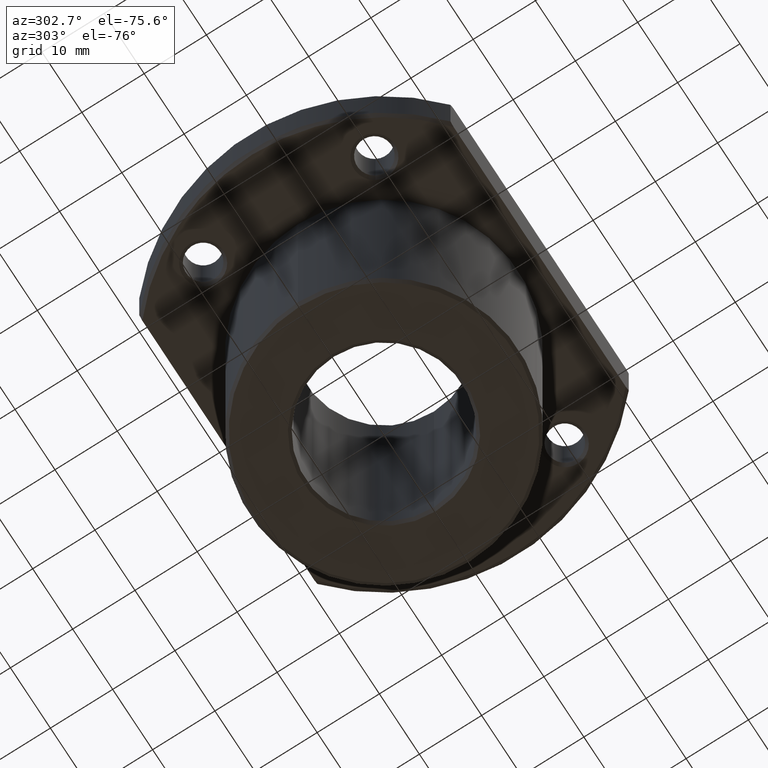
[diagram: clean part render]
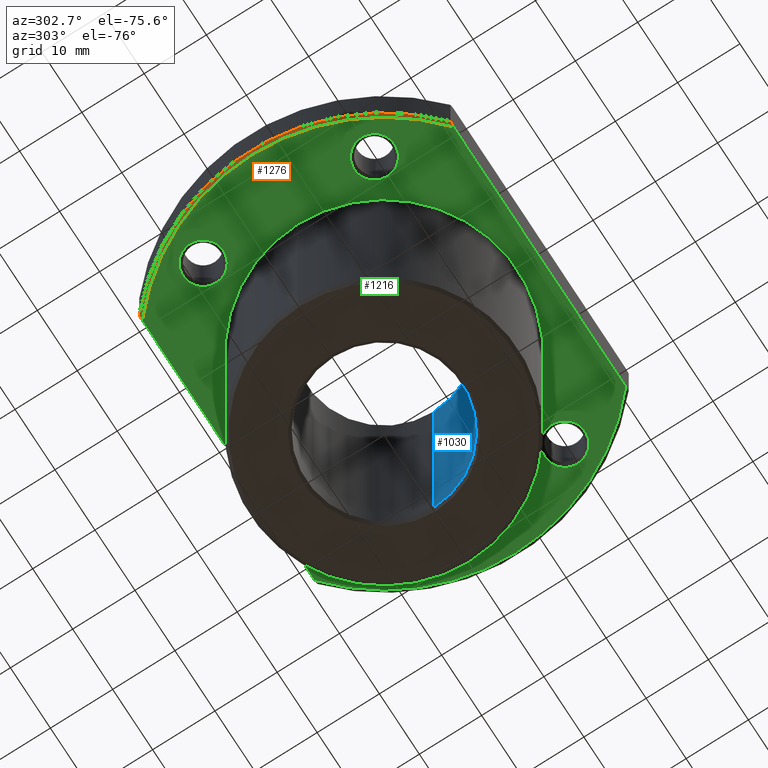
[diagram: same view with three faces highlighted in distinct colors, each labeled with its STEP entity id]
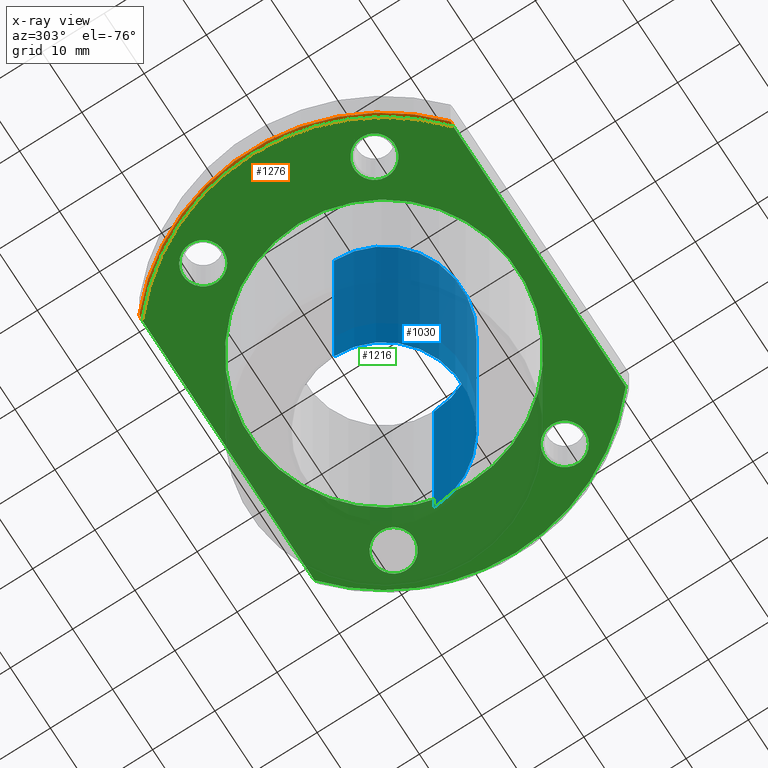
[diagram: x-ray of the same camera — body ghosted, the three highlighted faces saturated]
A machine part, auxiliary view with three faces highlighted in distinct colors.
The next image is the same camera in x-ray (body ghosted, the three faces saturated) — at least one of them is partly hidden behind the body in this view.
Their STEP definitions:

[orange] entity #1276 — the highlighted conical surface has half-angle 45 deg.
#1156=AXIS2_PLACEMENT_3D('Circle Axis2P3D',#1154,#1155,$) ;
#1173=AXIS2_PLACEMENT_3D('Circle Axis2P3D',#1171,#1172,$) ;
#1268=AXIS2_PLACEMENT_3D('Cone Axis2P3D',#1265,#1266,#1267) ;
#1144=CARTESIAN_POINT('Vertex',(-22.299103121,-25.,43.5)) ;
#1151=CARTESIAN_POINT('Vertex',(-22.299103121,25.,43.5)) ;
#1154=CARTESIAN_POINT('Axis2P3D Location',(0.,0.,43.5)) ;
#1171=CARTESIAN_POINT('Axis2P3D Location',(-7.1054273576E-015,-2.10750563495E-015,43.)) ;
#1175=CARTESIAN_POINT('Vertex',(-21.5406592285,25.,43.)) ;
#1177=CARTESIAN_POINT('Vertex',(-21.5406592285,-25.,43.)) ;
#1223=CARTESIAN_POINT('Control Point',(-22.299103121,25.,43.5)) ;
#1224=CARTESIAN_POINT('Control Point',(-22.1461034681,25.,43.3981565674)) ;
#1225=CARTESIAN_POINT('Control Point',(-21.9937619802,25.,43.2972376869)) ;
#1226=CARTESIAN_POINT('Control Point',(-21.8420646648,25.,43.197233163)) ;
#1227=CARTESIAN_POINT('Control Point',(-21.6910353499,25.,43.0981575996)) ;
#1228=CARTESIAN_POINT('Control Point',(-21.5406592285,25.,43.)) ;
#1247=CARTESIAN_POINT('Control Point',(-22.299103121,-25.,43.5)) ;
#1248=CARTESIAN_POINT('Control Point',(-22.1461033124,-25.,43.3981564609)) ;
#1249=CARTESIAN_POINT('Control Point',(-21.9937616702,-25.,43.2972374758)) ;
#1250=CARTESIAN_POINT('Control Point',(-21.8420649691,-25.,43.1972333626)) ;
#1251=CARTESIAN_POINT('Control Point',(-21.6910355014,-25.,43.0981576985)) ;
#1252=CARTESIAN_POINT('Control Point',(-21.5406592285,-25.,43.)) ;
#1265=CARTESIAN_POINT('Axis2P3D Location',(0.,9.49661796165E-014,10.)) ;
#1155=DIRECTION('Axis2P3D Direction',(0.,0.,1.)) ;
#1172=DIRECTION('Axis2P3D Direction',(0.,0.,1.)) ;
#1266=DIRECTION('Axis2P3D Direction',(0.,-2.85974757725E-015,1.)) ;
#1267=DIRECTION('Axis2P3D XDirection',(0.728768862976,0.684759771275,1.97563352395E-015)) ;
#1271=ORIENTED_EDGE('',*,*,#1253,.T.) ;
#1272=ORIENTED_EDGE('',*,*,#1158,.F.) ;
#1273=ORIENTED_EDGE('',*,*,#1229,.T.) ;
#1274=ORIENTED_EDGE('',*,*,#1179,.T.) ;
#1276=ADVANCED_FACE('',(#1275),#1269,.T.) ;
#1222=B_SPLINE_CURVE_WITH_KNOTS('',5,(#1223,#1224,#1225,#1226,#1227,#1228),.UNSPECIFIED.,.F.,.U.,(6,6),(0.,2.06574355888),.UNSPECIFIED.) ;
#1246=B_SPLINE_CURVE_WITH_KNOTS('',5,(#1247,#1248,#1249,#1250,#1251,#1252),.UNSPECIFIED.,.F.,.U.,(6,6),(0.,2.06574563999),.UNSPECIFIED.) ;
#1157=CIRCLE('generated circle',#1156,33.5) ;
#1174=CIRCLE('generated circle',#1173,33.) ;
#1269=CONICAL_SURFACE('Cone',#1268,0.,0.785398163397) ;
#1158=EDGE_CURVE('',#1152,#1145,#1157,.T.) ;
#1179=EDGE_CURVE('',#1176,#1178,#1174,.T.) ;
#1229=EDGE_CURVE('',#1152,#1176,#1222,.T.) ;
#1253=EDGE_CURVE('',#1178,#1145,#1246,.F.) ;
#1270=EDGE_LOOP('',(#1271,#1272,#1273,#1274)) ;
#1275=FACE_OUTER_BOUND('',#1270,.T.) ;
#1145=VERTEX_POINT('',#1144) ;
#1152=VERTEX_POINT('',#1151) ;
#1176=VERTEX_POINT('',#1175) ;
#1178=VERTEX_POINT('',#1177) ;

[blue] entity #1030 — the highlighted cylindrical surface (partial cylindrical patch) has radius 12.5 mm, axis along (0, 0, 1).
#179=AXIS2_PLACEMENT_3D('Circle Axis2P3D',#177,#178,$) ;
#991=AXIS2_PLACEMENT_3D('Cylinder Axis2P3D',#988,#989,#990) ;
#1021=AXIS2_PLACEMENT_3D('Circle Axis2P3D',#1019,#1020,$) ;
#174=CARTESIAN_POINT('Vertex',(-12.5,1.53075794228E-015,0.5)) ;
#177=CARTESIAN_POINT('Axis2P3D Location',(-1.55431223448E-015,1.7763568394E-015,0.5)) ;
#181=CARTESIAN_POINT('Vertex',(12.5,-3.06151588456E-015,0.5)) ;
#988=CARTESIAN_POINT('Axis2P3D Location',(0.,0.,21.5)) ;
#997=CARTESIAN_POINT('Vertex',(12.5,-3.06151588456E-015,52.5)) ;
#999=CARTESIAN_POINT('Vertex',(-12.5,1.53075794228E-015,52.5)) ;
#1002=CARTESIAN_POINT('Line Origine',(-12.5,1.53075794228E-015,43.)) ;
#1007=CARTESIAN_POINT('Line Origine',(12.5,0.,43.)) ;
#1019=CARTESIAN_POINT('Axis2P3D Location',(0.,0.,52.5)) ;
#178=DIRECTION('Axis2P3D Direction',(3.3043517931E-016,3.2480225715E-015,1.)) ;
#989=DIRECTION('Axis2P3D Direction',(0.,0.,1.)) ;
#990=DIRECTION('Axis2P3D XDirection',(1.,0.,0.)) ;
#1003=DIRECTION('Vector Direction',(0.,0.,1.)) ;
#1008=DIRECTION('Vector Direction',(0.,0.,1.)) ;
#1020=DIRECTION('Axis2P3D Direction',(0.,0.,1.)) ;
#1004=VECTOR('Line Direction',#1003,1.) ;
#1009=VECTOR('Line Direction',#1008,1.) ;
#1025=ORIENTED_EDGE('',*,*,#1023,.T.) ;
#1026=ORIENTED_EDGE('',*,*,#1011,.F.) ;
#1027=ORIENTED_EDGE('',*,*,#183,.F.) ;
#1028=ORIENTED_EDGE('',*,*,#1006,.T.) ;
#1030=ADVANCED_FACE('',(#1029),#992,.F.) ;
#180=CIRCLE('generated circle',#179,12.5) ;
#1022=CIRCLE('generated circle',#1021,12.5) ;
#992=CYLINDRICAL_SURFACE('generated cylinder',#991,12.5) ;
#183=EDGE_CURVE('',#175,#182,#180,.T.) ;
#1006=EDGE_CURVE('',#175,#1000,#1005,.T.) ;
#1011=EDGE_CURVE('',#182,#998,#1010,.T.) ;
#1023=EDGE_CURVE('',#1000,#998,#1022,.T.) ;
#1024=EDGE_LOOP('',(#1025,#1026,#1027,#1028)) ;
#1029=FACE_OUTER_BOUND('',#1024,.T.) ;
#1005=LINE('Line',#1002,#1004) ;
#1010=LINE('Line',#1007,#1009) ;
#175=VERTEX_POINT('',#174) ;
#182=VERTEX_POINT('',#181) ;
#998=VERTEX_POINT('',#997) ;
#1000=VERTEX_POINT('',#999) ;

[green] entity #1216 — the highlighted planar face has unit normal (0, 0, 1).
#48=AXIS2_PLACEMENT_3D('Circle Axis2P3D',#46,#47,$) ;
#74=AXIS2_PLACEMENT_3D('Circle Axis2P3D',#72,#73,$) ;
#258=AXIS2_PLACEMENT_3D('Circle Axis2P3D',#256,#257,$) ;
#280=AXIS2_PLACEMENT_3D('Circle Axis2P3D',#278,#279,$) ;
#411=AXIS2_PLACEMENT_3D('Circle Axis2P3D',#409,#410,$) ;
#433=AXIS2_PLACEMENT_3D('Circle Axis2P3D',#431,#432,$) ;
#564=AXIS2_PLACEMENT_3D('Circle Axis2P3D',#562,#563,$) ;
#586=AXIS2_PLACEMENT_3D('Circle Axis2P3D',#584,#585,$) ;
#717=AXIS2_PLACEMENT_3D('Circle Axis2P3D',#715,#716,$) ;
#739=AXIS2_PLACEMENT_3D('Circle Axis2P3D',#737,#738,$) ;
#978=AXIS2_PLACEMENT_3D('Circle Axis2P3D',#976,#977,$) ;
#1169=AXIS2_PLACEMENT_3D('Plane Axis2P3D',#1166,#1167,#1168) ;
#1173=AXIS2_PLACEMENT_3D('Circle Axis2P3D',#1171,#1172,$) ;
#43=CARTESIAN_POINT('Vertex',(-21.5,2.63290366072E-015,43.)) ;
#46=CARTESIAN_POINT('Axis2P3D Location',(0.,0.,43.)) ;
#50=CARTESIAN_POINT('Vertex',(21.5,0.,43.)) ;
#72=CARTESIAN_POINT('Axis2P3D Location',(0.,0.,43.)) ;
#237=CARTESIAN_POINT('Vertex',(-26.6302811579,15.3750000146,43.)) ;
#253=CARTESIAN_POINT('Vertex',(-21.0011160418,12.125,43.)) ;
#256=CARTESIAN_POINT('Axis2P3D Location',(-23.8156986041,13.75,43.)) ;
#278=CARTESIAN_POINT('Axis2P3D Location',(-23.8156986041,13.75,43.)) ;
#390=CARTESIAN_POINT('Vertex',(-26.6302811748,-15.3749999854,43.)) ;
#406=CARTESIAN_POINT('Vertex',(-21.0011160418,-12.125,43.)) ;
#409=CARTESIAN_POINT('Axis2P3D Location',(-23.8156986041,-13.75,43.)) ;
#431=CARTESIAN_POINT('Axis2P3D Location',(-23.8156986041,-13.75,43.)) ;
#543=CARTESIAN_POINT('Vertex',(26.6302811748,15.3749999854,43.)) ;
#559=CARTESIAN_POINT('Vertex',(21.0011160418,12.125,43.)) ;
#562=CARTESIAN_POINT('Axis2P3D Location',(23.8156986041,13.75,43.)) ;
#584=CARTESIAN_POINT('Axis2P3D Location',(23.8156986041,13.75,43.)) ;
#696=CARTESIAN_POINT('Vertex',(26.6302811579,-15.3750000146,43.)) ;
#712=CARTESIAN_POINT('Vertex',(21.0011160418,-12.125,43.)) ;
#715=CARTESIAN_POINT('Axis2P3D Location',(23.8156986041,-13.75,43.)) ;
#737=CARTESIAN_POINT('Axis2P3D Location',(23.8156986041,-13.75,43.)) ;
#965=CARTESIAN_POINT('Vertex',(21.5406592285,25.,43.)) ;
#973=CARTESIAN_POINT('Vertex',(21.5406592285,-25.,43.)) ;
#976=CARTESIAN_POINT('Axis2P3D Location',(-7.1054273576E-015,2.29080373924E-015,43.)) ;
#1166=CARTESIAN_POINT('Axis2P3D Location',(0.,0.,43.)) ;
#1171=CARTESIAN_POINT('Axis2P3D Location',(-7.1054273576E-015,-2.10750563495E-015,43.)) ;
#1175=CARTESIAN_POINT('Vertex',(-21.5406592285,25.,43.)) ;
#1177=CARTESIAN_POINT('Vertex',(-21.5406592285,-25.,43.)) ;
#1180=CARTESIAN_POINT('Line Origine',(3.5527136788E-015,25.,43.)) ;
#1185=CARTESIAN_POINT('Line Origine',(0.,-25.,43.)) ;
#47=DIRECTION('Axis2P3D Direction',(0.,0.,1.)) ;
#73=DIRECTION('Axis2P3D Direction',(0.,0.,1.)) ;
#257=DIRECTION('Axis2P3D Direction',(-1.50322431925E-013,-1.28320769025E-013,1.)) ;
#279=DIRECTION('Axis2P3D Direction',(-4.45710559841E-013,-7.71993335114E-013,1.)) ;
#410=DIRECTION('Axis2P3D Direction',(3.53374936724E-014,-1.9093756096E-013,1.)) ;
#432=DIRECTION('Axis2P3D Direction',(4.47063430095E-013,-7.7433657513E-013,1.)) ;
#563=DIRECTION('Axis2P3D Direction',(-3.59732315955E-014,1.9437261636E-013,1.)) ;
#585=DIRECTION('Axis2P3D Direction',(-4.43986689796E-013,7.69007504612E-013,1.)) ;
#716=DIRECTION('Axis2P3D Direction',(1.50322431925E-013,1.28320769025E-013,1.)) ;
#738=DIRECTION('Axis2P3D Direction',(4.4748691668E-013,7.75070075413E-013,1.)) ;
#977=DIRECTION('Axis2P3D Direction',(9.77275842401E-015,-1.04008476281E-014,1.)) ;
#1167=DIRECTION('Axis2P3D Direction',(0.,0.,1.)) ;
#1168=DIRECTION('Axis2P3D XDirection',(1.,0.,0.)) ;
#1172=DIRECTION('Axis2P3D Direction',(0.,0.,1.)) ;
#1181=DIRECTION('Vector Direction',(1.,0.,0.)) ;
#1186=DIRECTION('Vector Direction',(1.,0.,0.)) ;
#1182=VECTOR('Line Direction',#1181,1.) ;
#1187=VECTOR('Line Direction',#1186,1.) ;
#1191=ORIENTED_EDGE('',*,*,#1179,.F.) ;
#1192=ORIENTED_EDGE('',*,*,#1184,.F.) ;
#1193=ORIENTED_EDGE('',*,*,#980,.F.) ;
#1194=ORIENTED_EDGE('',*,*,#1189,.F.) ;
#1197=ORIENTED_EDGE('',*,*,#719,.T.) ;
#1198=ORIENTED_EDGE('',*,*,#741,.T.) ;
#1201=ORIENTED_EDGE('',*,*,#566,.T.) ;
#1202=ORIENTED_EDGE('',*,*,#588,.T.) ;
#1205=ORIENTED_EDGE('',*,*,#413,.T.) ;
#1206=ORIENTED_EDGE('',*,*,#435,.T.) ;
#1209=ORIENTED_EDGE('',*,*,#260,.T.) ;
#1210=ORIENTED_EDGE('',*,*,#282,.T.) ;
#1213=ORIENTED_EDGE('',*,*,#76,.T.) ;
#1214=ORIENTED_EDGE('',*,*,#52,.T.) ;
#1199=FACE_BOUND('',#1196,.T.) ;
#1203=FACE_BOUND('',#1200,.T.) ;
#1207=FACE_BOUND('',#1204,.T.) ;
#1211=FACE_BOUND('',#1208,.T.) ;
#1215=FACE_BOUND('',#1212,.T.) ;
#1216=ADVANCED_FACE('',(#1195,#1199,#1203,#1207,#1211,#1215),#1170,.F.) ;
#49=CIRCLE('generated circle',#48,21.5) ;
#75=CIRCLE('generated circle',#74,21.5) ;
#259=CIRCLE('generated circle',#258,3.25) ;
#281=CIRCLE('generated circle',#280,3.25) ;
#412=CIRCLE('generated circle',#411,3.25) ;
#434=CIRCLE('generated circle',#433,3.25) ;
#565=CIRCLE('generated circle',#564,3.25) ;
#587=CIRCLE('generated circle',#586,3.25) ;
#718=CIRCLE('generated circle',#717,3.25) ;
#740=CIRCLE('generated circle',#739,3.25) ;
#979=CIRCLE('generated circle',#978,33.) ;
#1174=CIRCLE('generated circle',#1173,33.) ;
#52=EDGE_CURVE('',#51,#44,#49,.T.) ;
#76=EDGE_CURVE('',#44,#51,#75,.T.) ;
#260=EDGE_CURVE('',#238,#254,#259,.T.) ;
#282=EDGE_CURVE('',#254,#238,#281,.T.) ;
#413=EDGE_CURVE('',#391,#407,#412,.T.) ;
#435=EDGE_CURVE('',#407,#391,#434,.T.) ;
#566=EDGE_CURVE('',#544,#560,#565,.T.) ;
#588=EDGE_CURVE('',#560,#544,#587,.T.) ;
#719=EDGE_CURVE('',#697,#713,#718,.T.) ;
#741=EDGE_CURVE('',#713,#697,#740,.T.) ;
#980=EDGE_CURVE('',#974,#966,#979,.T.) ;
#1179=EDGE_CURVE('',#1176,#1178,#1174,.T.) ;
#1184=EDGE_CURVE('',#966,#1176,#1183,.F.) ;
#1189=EDGE_CURVE('',#1178,#974,#1188,.T.) ;
#1190=EDGE_LOOP('',(#1191,#1192,#1193,#1194)) ;
#1196=EDGE_LOOP('',(#1197,#1198)) ;
#1200=EDGE_LOOP('',(#1201,#1202)) ;
#1204=EDGE_LOOP('',(#1205,#1206)) ;
#1208=EDGE_LOOP('',(#1209,#1210)) ;
#1212=EDGE_LOOP('',(#1213,#1214)) ;
#1195=FACE_OUTER_BOUND('',#1190,.T.) ;
#1183=LINE('Line',#1180,#1182) ;
#1188=LINE('Line',#1185,#1187) ;
#1170=PLANE('Plane',#1169) ;
#44=VERTEX_POINT('',#43) ;
#51=VERTEX_POINT('',#50) ;
#238=VERTEX_POINT('',#237) ;
#254=VERTEX_POINT('',#253) ;
#391=VERTEX_POINT('',#390) ;
#407=VERTEX_POINT('',#406) ;
#544=VERTEX_POINT('',#543) ;
#560=VERTEX_POINT('',#559) ;
#697=VERTEX_POINT('',#696) ;
#713=VERTEX_POINT('',#712) ;
#966=VERTEX_POINT('',#965) ;
#974=VERTEX_POINT('',#973) ;
#1176=VERTEX_POINT('',#1175) ;
#1178=VERTEX_POINT('',#1177) ;